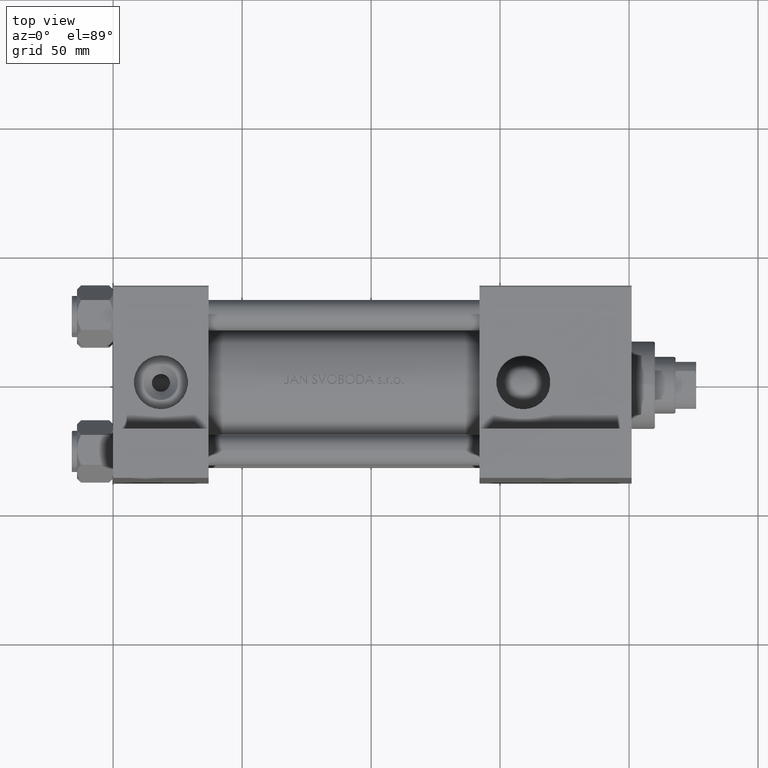
[diagram: clean part render]
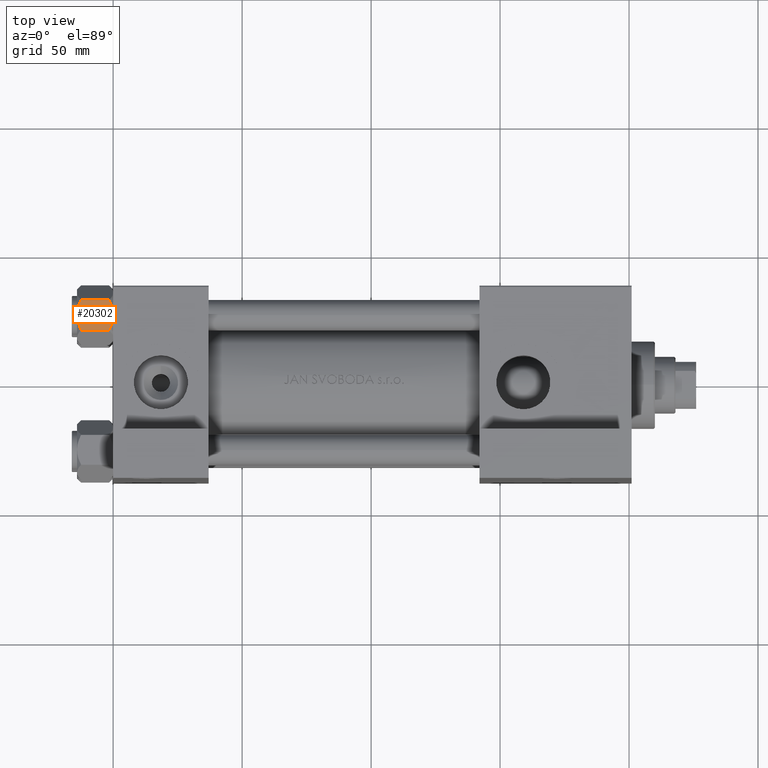
[diagram: same view with one face highlighted and labeled with its STEP entity id]
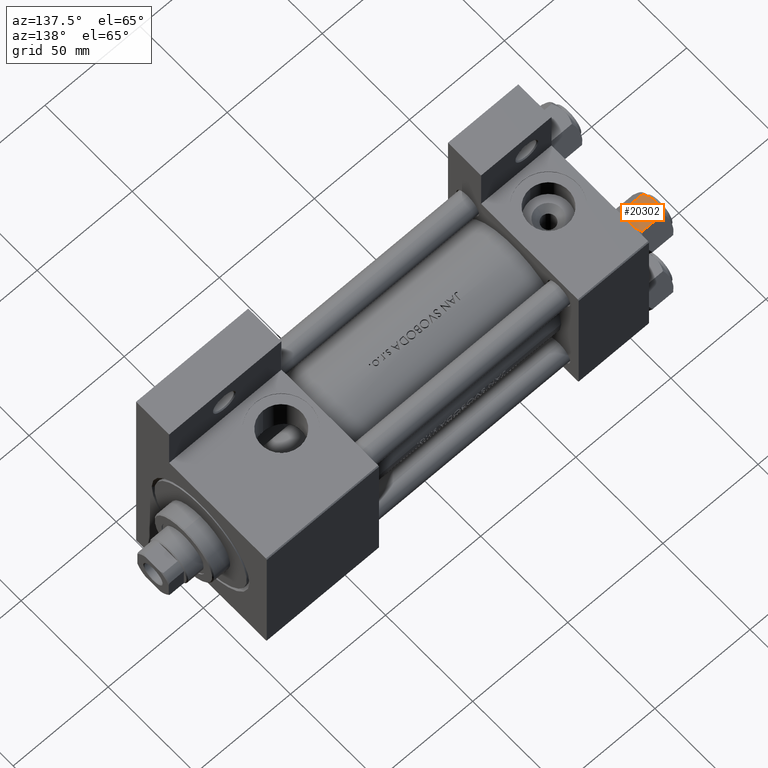
[diagram: same view with one face highlighted and labeled with its STEP entity id]
A machine part, top view. The second image highlights one B-rep face of the part: STEP entity #20302.
A second angle (auxiliary view) of the same face is appended — the face is thin or edge-on in the first view.
In plain terms, the highlighted planar face has unit normal (0, -0, -1).
Its self-contained STEP definition (entity closure, byte-faithful):
#160 = CARTESIAN_POINT ( 'NONE',  ( -3.474497094393253604, -10.06321519197517844, -0.5726960901042740248 ) ) ;
#395 = CARTESIAN_POINT ( 'NONE',  ( -3.960942496020602555, -10.06321519197517667, -13.28842716763895737 ) ) ;
#844 = CARTESIAN_POINT ( 'NONE',  ( 5.359707691559676412, -10.06321519197517844, -12.66836134619534882 ) ) ;
#1274 = CARTESIAN_POINT ( 'NONE',  ( -5.810000000000000497, -10.06321519197517844, -12.44321519197518455 ) ) ;
#1373 = CARTESIAN_POINT ( 'NONE',  ( -5.810000000000000497, -10.06321519197517844, -12.44321519197518455 ) ) ;
#1814 = CARTESIAN_POINT ( 'NONE',  ( 5.810000000000000497, -10.06321519197517667, -12.44321519197518633 ) ) ;
#2967 = B_SPLINE_CURVE_WITH_KNOTS ( 'NONE', 3,
 ( #44953, #15042, #37709, #18286, #30471, #3107, #37463, #41705, #33479 ),
 .UNSPECIFIED., .F., .F.,
 ( 4, 2, 1, 2, 4 ),
 ( 0.02074012592819902620, 0.02149589804477579011, 0.02225167016135255402, 0.02376321439450608530, 0.02678630286081314441 ),
 .UNSPECIFIED. ) ;
#3107 = CARTESIAN_POINT ( 'NONE',  ( 2.508586450168040383, -10.06321519197517667, -0.2975752632032270806 ) ) ;
#3902 = CARTESIAN_POINT ( 'NONE',  ( 5.810000000000000497, -10.06321519197517667, -1.556784808024813671 ) ) ;
#4144 = CARTESIAN_POINT ( 'NONE',  ( 5.810000000000000497, -10.06321519197517667, -14.00000000000000000 ) ) ;
#4151 = CARTESIAN_POINT ( 'NONE',  ( -0.5112014849988886223, -10.06321519197517489, -13.99019602057109068 ) ) ;
#6096 = EDGE_CURVE ( 'NONE', #15404, #44286, #9866, .T. ) ;
#6330 = EDGE_CURVE ( 'NONE', #7197, #8978, #17747, .T. ) ;
#7197 = VERTEX_POINT ( 'NONE', #18595 ) ;
#7657 = ORIENTED_EDGE ( 'NONE', *, *, #39906, .F. ) ;
#8132 = DIRECTION ( 'NONE',  ( -0.000000000000000000, -0.000000000000000000, 1.000000000000000000 ) ) ;
#8866 = CARTESIAN_POINT ( 'NONE',  ( -5.810000000000000497, -10.06321519197517844, -14.00000000000000000 ) ) ;
#8978 = VERTEX_POINT ( 'NONE', #11461 ) ;
#9654 = EDGE_LOOP ( 'NONE', ( #36211, #20359, #11307, #42922, #7657, #11077 ) ) ;
#9866 = LINE ( 'NONE', #48235, #43350 ) ;
#10461 = EDGE_CURVE ( 'NONE', #39817, #27330, #37018, .T. ) ;
#11068 = AXIS2_PLACEMENT_3D ( 'NONE', #4144, #45506, #37269 ) ;
#11077 = ORIENTED_EDGE ( 'NONE', *, *, #10461, .F. ) ;
#11307 = ORIENTED_EDGE ( 'NONE', *, *, #13836, .F. ) ;
#11461 = CARTESIAN_POINT ( 'NONE',  ( 1.502314598737159820E-15, -10.06321519197518022, 0.000000000000000000 ) ) ;
#12285 = CARTESIAN_POINT ( 'NONE',  ( 1.020132157807625672, -10.06321519197517489, -14.00000000000000178 ) ) ;
#13023 = CARTESIAN_POINT ( 'NONE',  ( 2.013954290287967019, -10.06321519197517489, -13.84298883202400532 ) ) ;
#13836 = EDGE_CURVE ( 'NONE', #8978, #44286, #2967, .T. ) ;
#14851 = CARTESIAN_POINT ( 'NONE',  ( -4.900668367960797411, -10.06321519197517844, -1.121556683709773683 ) ) ;
#15042 = CARTESIAN_POINT ( 'NONE',  ( 0.2543996698847487137, -10.06321519197517844, 2.651777813537460036E-15 ) ) ;
#15337 = FACE_OUTER_BOUND ( 'NONE', #9654, .T. ) ;
#15365 = EDGE_CURVE ( 'NONE', #15404, #39817, #28858, .T. ) ;
#15404 = VERTEX_POINT ( 'NONE', #1814 ) ;
#15823 = CARTESIAN_POINT ( 'NONE',  ( -3.958929922320422179, -10.06321519197517667, -0.7421398502353990789 ) ) ;
#17589 = DIRECTION ( 'NONE',  ( -0.000000000000000000, -0.000000000000000000, 1.000000000000000000 ) ) ;
#17747 = B_SPLINE_CURVE_WITH_KNOTS ( 'NONE', 3,
 ( #48980, #19316, #14851, #15823, #160, #30525, #22812, #42250 ),
 .UNSPECIFIED., .F., .F.,
 ( 4, 2, 2, 4 ),
 ( 0.01467889604968879505, 0.01619420351931635110, 0.01770951098894391063, 0.02074012592819902620 ),
 .UNSPECIFIED. ) ;
#18286 = CARTESIAN_POINT ( 'NONE',  ( 1.018274738099085086, -10.06321519197517311, -0.04822742080070722276 ) ) ;
#18595 = CARTESIAN_POINT ( 'NONE',  ( -5.810000000000000497, -10.06321519197517844, -1.556784808024815225 ) ) ;
#19316 = CARTESIAN_POINT ( 'NONE',  ( -5.359707691559672860, -10.06321519197517667, -1.331638653804653405 ) ) ;
#20280 = CARTESIAN_POINT ( 'NONE',  ( -1.772424303831128478, -10.06321519197517489, -13.86611290782776251 ) ) ;
#20302 = ADVANCED_FACE ( 'NONE', ( #15337 ), #26540, .F. ) ;
#20359 = ORIENTED_EDGE ( 'NONE', *, *, #6096, .T. ) ;
#20489 = CARTESIAN_POINT ( 'NONE',  ( 4.900668367960796523, -10.06321519197517489, -12.87844331629023209 ) ) ;
#20729 = CARTESIAN_POINT ( 'NONE',  ( 5.810000000000000497, -10.06321519197517667, -12.44321519197518633 ) ) ;
#22812 = CARTESIAN_POINT ( 'NONE',  ( -1.020132157807625450, -10.06321519197517667, 2.398797306624178560E-15 ) ) ;
#23558 = VECTOR ( 'NONE', #8132, 1000.000000000000000 ) ;
#26540 = PLANE ( 'NONE',  #11068 ) ;
#27330 = VERTEX_POINT ( 'NONE', #1274 ) ;
#27470 = CARTESIAN_POINT ( 'NONE',  ( 1.502314598737159820E-15, -10.06321519197518022, -14.00000000000000000 ) ) ;
#27963 = CARTESIAN_POINT ( 'NONE',  ( 3.958929922320422179, -10.06321519197517489, -13.25786014976459803 ) ) ;
#28858 = B_SPLINE_CURVE_WITH_KNOTS ( 'NONE', 3,
 ( #20729, #844, #20489, #27963, #35937, #13023, #12285, #27470 ),
 .UNSPECIFIED., .F., .F.,
 ( 4, 2, 2, 4 ),
 ( 0.01467889604968879332, 0.01619420351931635110, 0.01770951098894391063, 0.02074012592819902620 ),
 .UNSPECIFIED. ) ;
#30471 = CARTESIAN_POINT ( 'NONE',  ( 1.772424303831127812, -10.06321519197517844, -0.1338870921722363216 ) ) ;
#30525 = CARTESIAN_POINT ( 'NONE',  ( -2.013954290287966575, -10.06321519197517844, -0.1570111679759964574 ) ) ;
#30772 = CARTESIAN_POINT ( 'NONE',  ( 1.502314598737159820E-15, -10.06321519197518022, -14.00000000000000000 ) ) ;
#33479 = CARTESIAN_POINT ( 'NONE',  ( 5.810000000000000497, -10.06321519197517667, -1.556784808024813671 ) ) ;
#34522 = CARTESIAN_POINT ( 'NONE',  ( -1.018274738099085086, -10.06321519197517667, -13.95177257919929126 ) ) ;
#35495 = CARTESIAN_POINT ( 'NONE',  ( -4.908816193182379273, -10.06321519197517667, -12.89380709538398939 ) ) ;
#35937 = CARTESIAN_POINT ( 'NONE',  ( 3.474497094393254049, -10.06321519197517667, -13.42730390989572697 ) ) ;
#36211 = ORIENTED_EDGE ( 'NONE', *, *, #15365, .F. ) ;
#37018 = B_SPLINE_CURVE_WITH_KNOTS ( 'NONE', 3,
 ( #30772, #42252, #4151, #34522, #20280, #46477, #395, #35495, #1373 ),
 .UNSPECIFIED., .F., .F.,
 ( 4, 2, 1, 2, 4 ),
 ( 0.02074012592819902620, 0.02149589804477579011, 0.02225167016135255749, 0.02376321439450608530, 0.02678630286081314441 ),
 .UNSPECIFIED. ) ;
#37269 = DIRECTION ( 'NONE',  ( -1.000000000000000000, -1.492877345935290102E-16, 0.000000000000000000 ) ) ;
#37463 = CARTESIAN_POINT ( 'NONE',  ( 3.960942496020602555, -10.06321519197517667, -0.7115728323610392980 ) ) ;
#37709 = CARTESIAN_POINT ( 'NONE',  ( 0.5112014849988887333, -10.06321519197517667, -0.009803979428911684807 ) ) ;
#39817 = VERTEX_POINT ( 'NONE', #46497 ) ;
#39906 = EDGE_CURVE ( 'NONE', #27330, #7197, #43009, .T. ) ;
#41705 = CARTESIAN_POINT ( 'NONE',  ( 4.908816193182379273, -10.06321519197517844, -1.106192904616004835 ) ) ;
#42250 = CARTESIAN_POINT ( 'NONE',  ( 1.502314598737159820E-15, -10.06321519197518022, 0.000000000000000000 ) ) ;
#42252 = CARTESIAN_POINT ( 'NONE',  ( -0.2543996698847483806, -10.06321519197517667, -14.00000000000000355 ) ) ;
#42922 = ORIENTED_EDGE ( 'NONE', *, *, #6330, .F. ) ;
#43009 = LINE ( 'NONE', #8866, #23558 ) ;
#43350 = VECTOR ( 'NONE', #17589, 1000.000000000000000 ) ;
#44286 = VERTEX_POINT ( 'NONE', #3902 ) ;
#44953 = CARTESIAN_POINT ( 'NONE',  ( 1.502314598737159820E-15, -10.06321519197518022, 0.000000000000000000 ) ) ;
#45506 = DIRECTION ( 'NONE',  ( -1.492877345935290102E-16, 1.000000000000000000, 0.000000000000000000 ) ) ;
#46477 = CARTESIAN_POINT ( 'NONE',  ( -2.508586450168039494, -10.06321519197517844, -13.70242473679676998 ) ) ;
#46497 = CARTESIAN_POINT ( 'NONE',  ( 1.502314598737159820E-15, -10.06321519197518022, -14.00000000000000000 ) ) ;
#48235 = CARTESIAN_POINT ( 'NONE',  ( 5.810000000000000497, -10.06321519197517667, -14.00000000000000000 ) ) ;
#48980 = CARTESIAN_POINT ( 'NONE',  ( -5.810000000000000497, -10.06321519197517844, -1.556784808024815225 ) ) ;